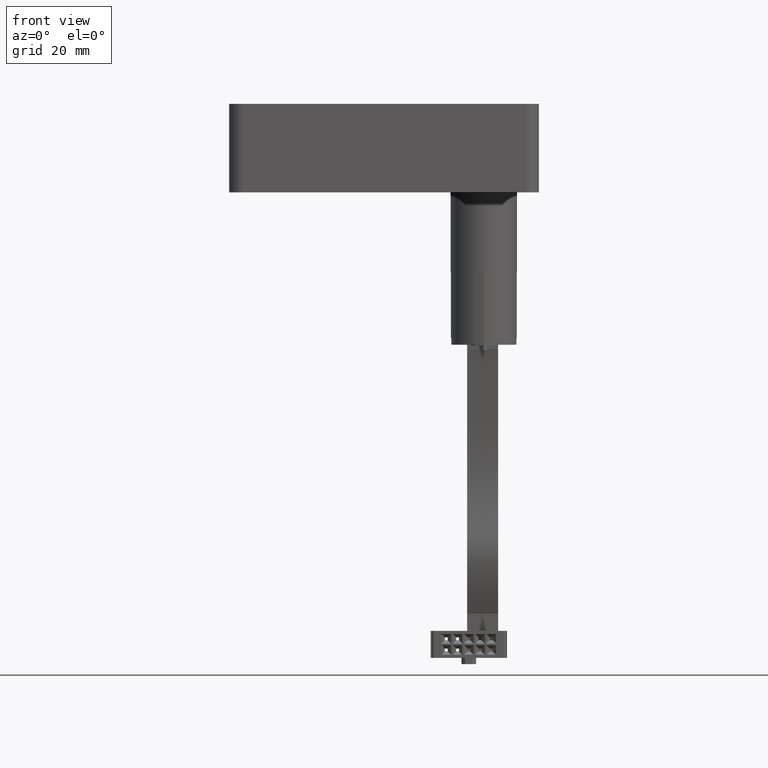
[diagram: clean part render]
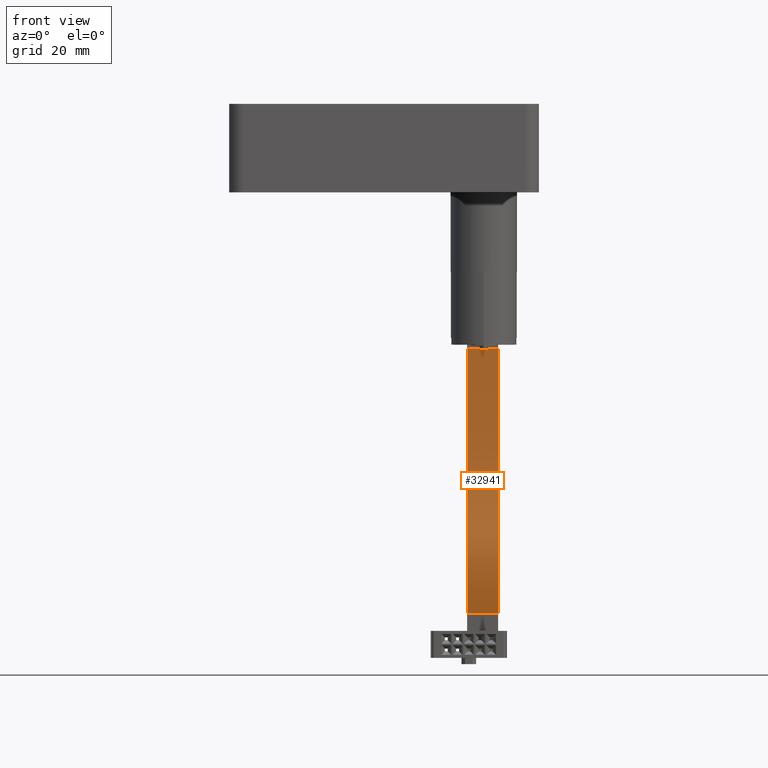
[diagram: same view with one face highlighted and labeled with its STEP entity id]
A machine part, front view. The second image highlights one B-rep face of the part: STEP entity #32941.
In plain terms, the highlighted face is a freeform B-spline surface patch.
Its self-contained STEP definition (entity closure, byte-faithful):
#116 = CARTESIAN_POINT ( 'NONE',  ( 5.881205347129963500, 36.98792515554648500, -76.35057389026320600 ) ) ;
#2904 = CARTESIAN_POINT ( 'NONE',  ( 12.88120534712996300, 36.98792515554648500, -76.35057389026320600 ) ) ;
#3071 = CARTESIAN_POINT ( 'NONE',  ( 5.881205347129963500, 35.48061585297250500, -38.39999999997362300 ) ) ;
#4015 = CARTESIAN_POINT ( 'NONE',  ( 5.881205347129963500, 35.31390655063204800, -85.21994079228036900 ) ) ;
#5262 = B_SPLINE_CURVE_WITH_KNOTS ( 'NONE', 3,
 ( #6759, #34411, #38506, #26528, #30302, #6941, #42419, #41920, #19030, #34059 ),
 .UNSPECIFIED., .F., .F.,
 ( 4, 1, 1, 1, 1, 1, 1, 4 ),
 ( 0.0000000000000000000, 0.2799999999999984700, 0.5600000000000001600, 0.6325813050569681900, 0.7066666666666666700, 0.7807643679149364200, 0.8533333333333337200, 1.000000000000000000 ),
 .UNSPECIFIED. ) ;
#5780 = CARTESIAN_POINT ( 'NONE',  ( 12.88120534712996300, 35.48061585297250500, -38.39999999997362300 ) ) ;
#6759 = CARTESIAN_POINT ( 'NONE',  ( 12.88120534712996300, 35.48061585297250500, -38.39999999997362300 ) ) ;
#6790 = VERTEX_POINT ( 'NONE', #19834 ) ;
#6941 = CARTESIAN_POINT ( 'NONE',  ( 12.88120534712996300, 35.95316249295114400, -80.74734242958723500 ) ) ;
#6989 = CARTESIAN_POINT ( 'NONE',  ( 12.88120534712996200, 38.28393812455294000, -67.92570514899550500 ) ) ;
#7042 = DIRECTION ( 'NONE',  ( -1.000000000000000000, -5.027760558099815800E-034, -5.866915858893104300E-035 ) ) ;
#7067 = VERTEX_POINT ( 'NONE', #5780 ) ;
#7346 = EDGE_CURVE ( 'NONE', #7067, #9518, #5262, .T. ) ;
#7478 = CARTESIAN_POINT ( 'NONE',  ( 5.881205347129963500, 36.98792515554648500, -76.35057389026320600 ) ) ;
#8162 = ORIENTED_EDGE ( 'NONE', *, *, #12140, .F. ) ;
#8297 = ORIENTED_EDGE ( 'NONE', *, *, #22028, .T. ) ;
#8621 = ORIENTED_EDGE ( 'NONE', *, *, #7346, .F. ) ;
#9518 = VERTEX_POINT ( 'NONE', #39451 ) ;
#9837 = CARTESIAN_POINT ( 'NONE',  ( 5.881205347129964300, 35.48061585297250500, -38.39999999997362300 ) ) ;
#10728 = CARTESIAN_POINT ( 'NONE',  ( 5.881205347129962600, 38.05860082648733600, -55.29276826002853100 ) ) ;
#11065 = CARTESIAN_POINT ( 'NONE',  ( 12.88120534712996300, 35.95316249295114400, -80.74734242958723500 ) ) ;
#11395 = CARTESIAN_POINT ( 'NONE',  ( 5.881205347129963500, 36.03147330064778200, -91.11332574756563900 ) ) ;
#11691 = CARTESIAN_POINT ( 'NONE',  ( 5.881205347129964300, 35.48061585297250500, -38.39999999997362300 ) ) ;
#12140 = EDGE_CURVE ( 'NONE', #9518, #6790, #32708, .T. ) ;
#13035 = CARTESIAN_POINT ( 'NONE',  ( 5.881205347129963500, 36.03147330064778200, -91.11332574756563900 ) ) ;
#16437 = CARTESIAN_POINT ( 'NONE',  ( 5.881205347129962600, 37.76852320895263700, -95.35890917148152800 ) ) ;
#16472 = EDGE_CURVE ( 'NONE', #7067, #26210, #29846, .T. ) ;
#17171 = B_SPLINE_CURVE_WITH_KNOTS ( 'NONE', 3,
 ( #11691, #46832, #27869, #23464, #116, #27362, #4015, #13035, #16437, #44287 ),
 .UNSPECIFIED., .F., .F.,
 ( 4, 1, 1, 1, 1, 1, 1, 4 ),
 ( 0.0000000000000000000, 0.2799999999999984700, 0.5600000000000001600, 0.6325813050569681900, 0.7066666666666666700, 0.7807643679149364200, 0.8533333333333337200, 1.000000000000000000 ),
 .UNSPECIFIED. ) ;
#17860 = DIRECTION ( 'NONE',  ( -1.000000000000000000, 0.0000000000000000000, 0.0000000000000000000 ) ) ;
#19030 = CARTESIAN_POINT ( 'NONE',  ( 12.88120534712996300, 37.76852320895263700, -95.35890917148152800 ) ) ;
#19834 = CARTESIAN_POINT ( 'NONE',  ( 5.881205347129964300, 38.93059397939137500, -98.19916630905935100 ) ) ;
#20781 = FACE_OUTER_BOUND ( 'NONE', #47109, .T. ) ;
#22028 = EDGE_CURVE ( 'NONE', #26210, #6790, #17171, .T. ) ;
#23167 = CARTESIAN_POINT ( 'NONE',  ( 12.88120534712996300, 36.33994417747744200, -44.03092275332523500 ) ) ;
#23265 = B_SPLINE_SURFACE_WITH_KNOTS ( 'NONE', 1, 3, ( 
 ( #30355, #23167, #38552, #6989, #2904, #11065, #50118, #26732, #46369, #30687 ),
 ( #3071, #26902, #10728, #26403, #7478, #38230, #34789, #11395, #42636, #38069 ) ),
 .UNSPECIFIED., .F., .F., .F.,
 ( 2, 2 ),
 ( 4, 1, 1, 1, 1, 1, 1, 4 ),
 ( 0.06250000000000002800, 0.5000000000000001100 ),
 ( 0.0000000000000000000, 0.2799999999999984700, 0.5600000000000001600, 0.6325813050569681900, 0.7066666666666666700, 0.7807643679149364200, 0.8533333333333337200, 1.000000000000000000 ),
 .UNSPECIFIED. ) ;
#23464 = CARTESIAN_POINT ( 'NONE',  ( 5.881205347129966100, 38.28393812455294000, -67.92570514899550500 ) ) ;
#26210 = VERTEX_POINT ( 'NONE', #9837 ) ;
#26403 = CARTESIAN_POINT ( 'NONE',  ( 5.881205347129966100, 38.28393812455294000, -67.92570514899550500 ) ) ;
#26528 = CARTESIAN_POINT ( 'NONE',  ( 12.88120534712996200, 38.28393812455294000, -67.92570514899550500 ) ) ;
#26732 = CARTESIAN_POINT ( 'NONE',  ( 12.88120534712996300, 36.03147330064778200, -91.11332574756563900 ) ) ;
#26902 = CARTESIAN_POINT ( 'NONE',  ( 5.881205347129963500, 36.33994417747744200, -44.03092275332523500 ) ) ;
#27362 = CARTESIAN_POINT ( 'NONE',  ( 5.881205347129963500, 35.95316249295114400, -80.74734242958723500 ) ) ;
#27869 = CARTESIAN_POINT ( 'NONE',  ( 5.881205347129962600, 38.05860082648733600, -55.29276826002853100 ) ) ;
#29846 = LINE ( 'NONE', #44499, #40229 ) ;
#30302 = CARTESIAN_POINT ( 'NONE',  ( 12.88120534712996300, 36.98792515554648500, -76.35057389026320600 ) ) ;
#30355 = CARTESIAN_POINT ( 'NONE',  ( 12.88120534712996300, 35.48061585297250500, -38.39999999997362300 ) ) ;
#30687 = CARTESIAN_POINT ( 'NONE',  ( 12.88120534712996200, 38.93059397939137500, -98.19916630905935100 ) ) ;
#32708 = LINE ( 'NONE', #38281, #48544 ) ;
#32941 = ADVANCED_FACE ( 'NONE', ( #20781 ), #23265, .T. ) ;
#34059 = CARTESIAN_POINT ( 'NONE',  ( 12.88120534712996200, 38.93059397939137500, -98.19916630905935100 ) ) ;
#34411 = CARTESIAN_POINT ( 'NONE',  ( 12.88120534712996300, 36.33994417747744200, -44.03092275332523500 ) ) ;
#34789 = CARTESIAN_POINT ( 'NONE',  ( 5.881205347129963500, 35.31390655063204800, -85.21994079228036900 ) ) ;
#38069 = CARTESIAN_POINT ( 'NONE',  ( 5.881205347129964300, 38.93059397939137500, -98.19916630905935100 ) ) ;
#38230 = CARTESIAN_POINT ( 'NONE',  ( 5.881205347129963500, 35.95316249295114400, -80.74734242958723500 ) ) ;
#38281 = CARTESIAN_POINT ( 'NONE',  ( 12.88120534712996200, 38.93059397939136800, -98.19916630905932200 ) ) ;
#38506 = CARTESIAN_POINT ( 'NONE',  ( 12.88120534712996300, 38.05860082648733600, -55.29276826002853100 ) ) ;
#38552 = CARTESIAN_POINT ( 'NONE',  ( 12.88120534712996300, 38.05860082648733600, -55.29276826002853100 ) ) ;
#39451 = CARTESIAN_POINT ( 'NONE',  ( 12.88120534712996200, 38.93059397939137500, -98.19916630905935100 ) ) ;
#40229 = VECTOR ( 'NONE', #17860, 1000.000000000000000 ) ;
#41920 = CARTESIAN_POINT ( 'NONE',  ( 12.88120534712996300, 36.03147330064778200, -91.11332574756563900 ) ) ;
#42419 = CARTESIAN_POINT ( 'NONE',  ( 12.88120534712996300, 35.31390655063204800, -85.21994079228036900 ) ) ;
#42636 = CARTESIAN_POINT ( 'NONE',  ( 5.881205347129962600, 37.76852320895263700, -95.35890917148152800 ) ) ;
#44287 = CARTESIAN_POINT ( 'NONE',  ( 5.881205347129964300, 38.93059397939137500, -98.19916630905935100 ) ) ;
#44499 = CARTESIAN_POINT ( 'NONE',  ( 12.88120534712996300, 35.48061585297250500, -38.39999999997362300 ) ) ;
#45818 = ORIENTED_EDGE ( 'NONE', *, *, #16472, .T. ) ;
#46369 = CARTESIAN_POINT ( 'NONE',  ( 12.88120534712996300, 37.76852320895263700, -95.35890917148152800 ) ) ;
#46832 = CARTESIAN_POINT ( 'NONE',  ( 5.881205347129963500, 36.33994417747744200, -44.03092275332523500 ) ) ;
#47109 = EDGE_LOOP ( 'NONE', ( #45818, #8297, #8162, #8621 ) ) ;
#48544 = VECTOR ( 'NONE', #7042, 1000.000000000000000 ) ;
#50118 = CARTESIAN_POINT ( 'NONE',  ( 12.88120534712996300, 35.31390655063204800, -85.21994079228036900 ) ) ;